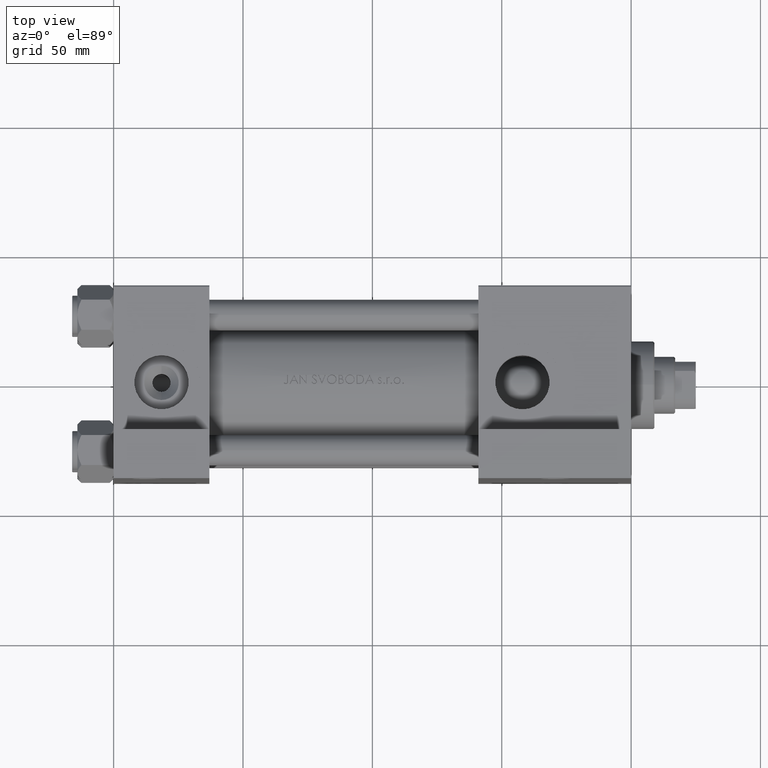
[diagram: clean part render]
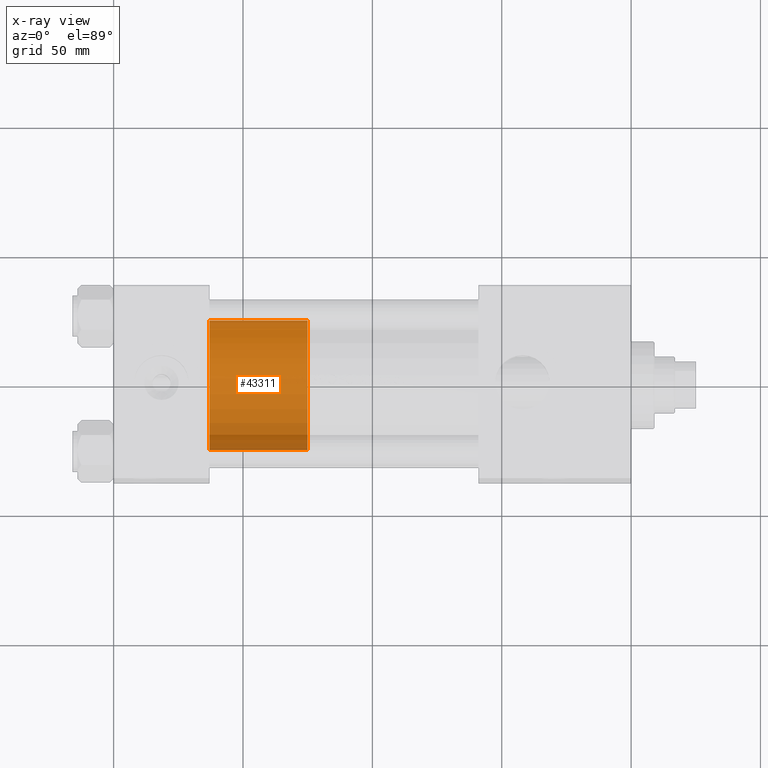
[diagram: x-ray — body ghosted, one internal face saturated and labeled with its STEP entity id]
A machine part, top view, then the same camera in x-ray: the body is ghosted and one INTERNAL B-rep face — a face not visible from any outside direction — is saturated and labeled: STEP entity #43311.
In plain terms, the highlighted cylindrical surface (partial cylindrical patch) has radius 25 mm, axis along (-1, 0, 0).
Its self-contained STEP definition (entity closure, byte-faithful):
#1161 = EDGE_CURVE ( 'NONE', #19131, #36049, #17606, .T. ) ;
#1366 = DIRECTION ( 'NONE',  ( -0.000000000000000000, -0.000000000000000000, -1.000000000000000000 ) ) ;
#1860 = EDGE_CURVE ( 'NONE', #47931, #36049, #41088, .T. ) ;
#2309 = EDGE_CURVE ( 'NONE', #28365, #19131, #6116, .T. ) ;
#3000 = ORIENTED_EDGE ( 'NONE', *, *, #1860, .T. ) ;
#3712 = AXIS2_PLACEMENT_3D ( 'NONE', #21289, #1366, #32747 ) ;
#6116 = CIRCLE ( 'NONE', #45036, 25.00000000000000000 ) ;
#6232 = CARTESIAN_POINT ( 'NONE',  ( -25.00000000000000000, 0.000000000000000000, 0.000000000000000000 ) ) ;
#9886 = VECTOR ( 'NONE', #33884, 1000.000000000000000 ) ;
#10155 = DIRECTION ( 'NONE',  ( 0.000000000000000000, 0.000000000000000000, 1.000000000000000000 ) ) ;
#11632 = VECTOR ( 'NONE', #17112, 1000.000000000000000 ) ;
#12645 = DIRECTION ( 'NONE',  ( 1.000000000000000000, 0.000000000000000000, 0.000000000000000000 ) ) ;
#14463 = LINE ( 'NONE', #37374, #9886 ) ;
#17112 = DIRECTION ( 'NONE',  ( -0.000000000000000000, -0.000000000000000000, -1.000000000000000000 ) ) ;
#17606 = LINE ( 'NONE', #28549, #11632 ) ;
#19131 = VERTEX_POINT ( 'NONE', #45387 ) ;
#20124 = CARTESIAN_POINT ( 'NONE',  ( 0.000000000000000000, 0.000000000000000000, 0.000000000000000000 ) ) ;
#20367 = DIRECTION ( 'NONE',  ( 0.000000000000000000, 0.000000000000000000, 1.000000000000000000 ) ) ;
#21112 = DIRECTION ( 'NONE',  ( 1.000000000000000000, 0.000000000000000000, 0.000000000000000000 ) ) ;
#21289 = CARTESIAN_POINT ( 'NONE',  ( 0.000000000000000000, 0.000000000000000000, 38.00000000000000000 ) ) ;
#23585 = AXIS2_PLACEMENT_3D ( 'NONE', #20124, #20367, #12645 ) ;
#23855 = EDGE_CURVE ( 'NONE', #28365, #47931, #14463, .T. ) ;
#26857 = ORIENTED_EDGE ( 'NONE', *, *, #23855, .T. ) ;
#27137 = ORIENTED_EDGE ( 'NONE', *, *, #2309, .F. ) ;
#28365 = VERTEX_POINT ( 'NONE', #38990 ) ;
#28549 = CARTESIAN_POINT ( 'NONE',  ( -25.00000000000000000, 0.000000000000000000, 38.00000000000000000 ) ) ;
#30902 = EDGE_LOOP ( 'NONE', ( #27137, #26857, #3000, #38611 ) ) ;
#32747 = DIRECTION ( 'NONE',  ( -1.000000000000000000, 0.000000000000000000, 0.000000000000000000 ) ) ;
#33884 = DIRECTION ( 'NONE',  ( -0.000000000000000000, -0.000000000000000000, -1.000000000000000000 ) ) ;
#36049 = VERTEX_POINT ( 'NONE', #6232 ) ;
#37374 = CARTESIAN_POINT ( 'NONE',  ( 25.00000000000000000, 3.061616997868383043E-15, 38.00000000000000000 ) ) ;
#38611 = ORIENTED_EDGE ( 'NONE', *, *, #1161, .F. ) ;
#38990 = CARTESIAN_POINT ( 'NONE',  ( 25.00000000000000000, 3.061616997868383043E-15, 38.00000000000000000 ) ) ;
#39778 = CARTESIAN_POINT ( 'NONE',  ( 0.000000000000000000, 0.000000000000000000, 38.00000000000000000 ) ) ;
#40203 = CYLINDRICAL_SURFACE ( 'NONE', #3712, 25.00000000000000000 ) ;
#41088 = CIRCLE ( 'NONE', #23585, 25.00000000000000000 ) ;
#43311 = ADVANCED_FACE ( 'NONE', ( #47663 ), #40203, .T. ) ;
#44683 = CARTESIAN_POINT ( 'NONE',  ( 25.00000000000000000, 3.061616997868383043E-15, 0.000000000000000000 ) ) ;
#45036 = AXIS2_PLACEMENT_3D ( 'NONE', #39778, #10155, #21112 ) ;
#45387 = CARTESIAN_POINT ( 'NONE',  ( -25.00000000000000000, 0.000000000000000000, 38.00000000000000000 ) ) ;
#47663 = FACE_OUTER_BOUND ( 'NONE', #30902, .T. ) ;
#47931 = VERTEX_POINT ( 'NONE', #44683 ) ;